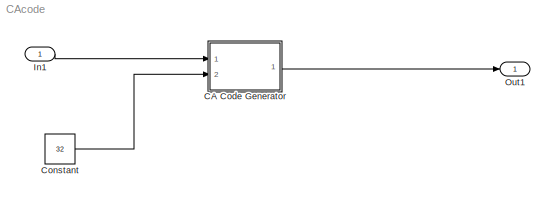
MODEL CAcode
KIND model
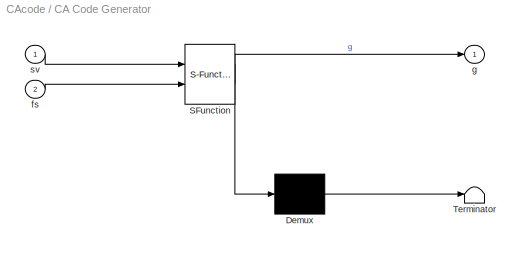
BLOCK [SubSystem] CA Code Generator
  ErrorFcn = Stateflow.Translate.translate
  PermitHierarchicalResolution = ExplicitOnly
  Ports = [2, 1]
  RequestExecContextInheritance = off
  SFBlockType = MATLAB Function
  SID = 1
  SystemSampleTime = 0.001
  TreatAsAtomicUnit = on
  Variant = off
BLOCK [Demux] CA Code Generator/ Demux 
  Outputs = 1
  Ports = [1, 1]
  SID = 1::20
BLOCK [S-Function] CA Code Generator/ SFunction 
  EnableBusSupport = on
  FunctionName = sf_sfun
  PortCounts = [2 2]
  Ports = [2, 2]
  SFcnIsStateOwnerBlock = off
  SFunctionDeploymentMode = off
  SID = 1::19
  Tag = Stateflow S-Function CAcode 2
BLOCK [Terminator] CA Code Generator/ Terminator 
  SID = 1::21
BLOCK [Inport] CA Code Generator/fs
  IconDisplay = Port number
  Port = 2
  SID = 1::22
BLOCK [Outport] CA Code Generator/g
  IconDisplay = Port number
  SID = 1::5
BLOCK [Inport] CA Code Generator/sv
  IconDisplay = Port number
  SID = 1::1
BLOCK [Constant] Constant
  SID = 3
  Value = 32
BLOCK [Inport] In1
  IconDisplay = Port number
  SID = 9
BLOCK [Outport] Out1
  IconDisplay = Port number
  PortDimensions = [1 32768]
  SID = 10
  SampleTime = 0.001
LINE CA Code Generator/ Demux :1 -> CA Code Generator/ Terminator :1
LINE CA Code Generator/ SFunction :1 -> CA Code Generator/ Demux :1
LINE CA Code Generator/ SFunction :2 -> CA Code Generator/g:1
LINE CA Code Generator/fs:1 -> CA Code Generator/ SFunction :2
LINE CA Code Generator/sv:1 -> CA Code Generator/ SFunction :1
LINE CA Code Generator:1 -> Out1:1
LINE Constant:1 -> CA Code Generator:2
LINE In1:1 -> CA Code Generator:1
CHART CA Code Generator states=1 transitions=1
  STATE_LABEL 'eML_blk_kernel()'
